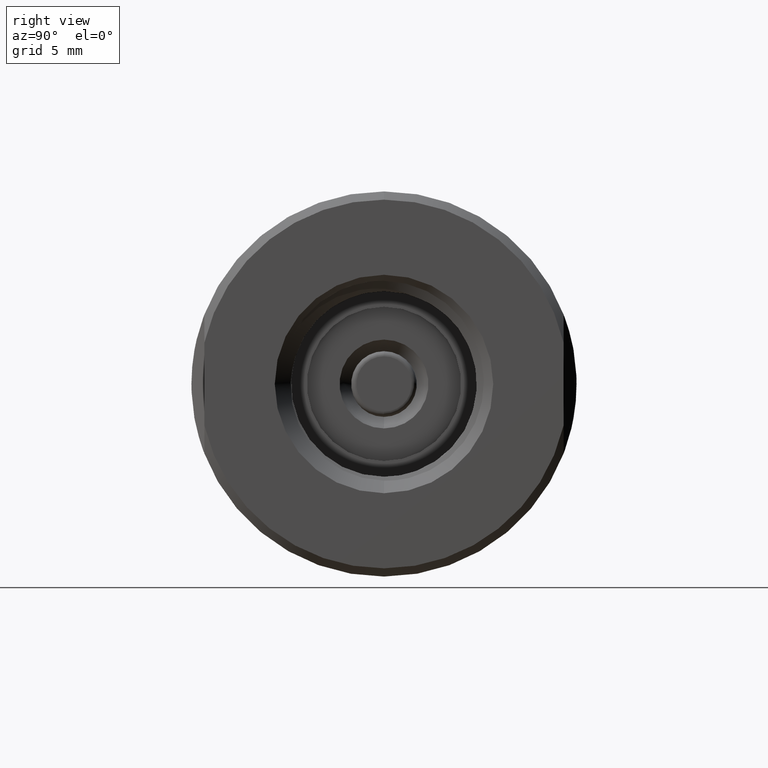
[diagram: clean part render]
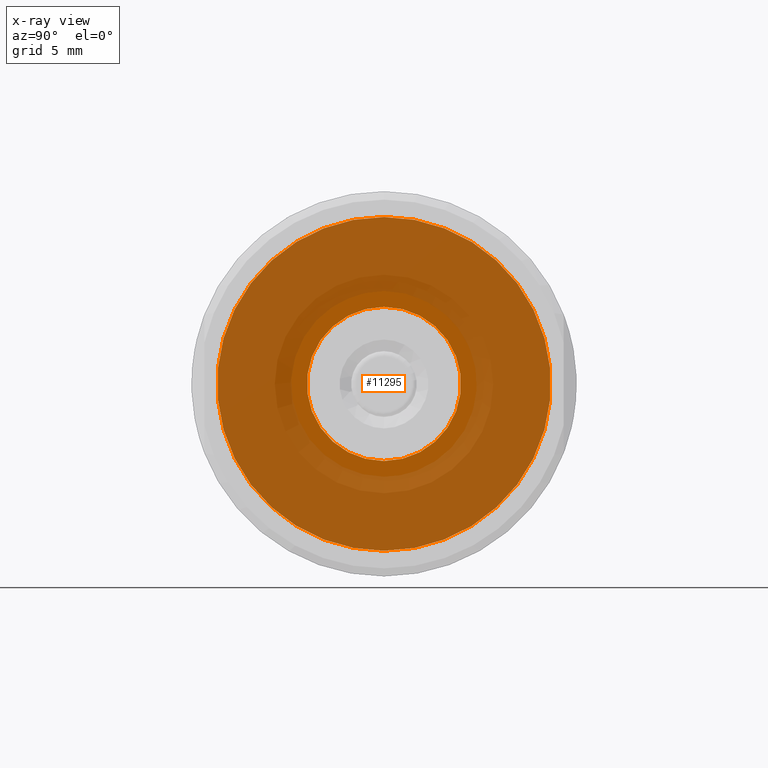
[diagram: x-ray — body ghosted, one internal face saturated and labeled with its STEP entity id]
A machine part, right view, then the same camera in x-ray: the body is ghosted and one INTERNAL B-rep face — a face not visible from any outside direction — is saturated and labeled: STEP entity #11295.
In plain terms, the highlighted planar face has unit normal (-1, 0, -0).
Its self-contained STEP definition (entity closure, byte-faithful):
#790 = CARTESIAN_POINT ( 'NONE',  ( 0.3125000000000000000, 0.0000000000000000000, 0.0000000000000000000 ) ) ;
#994 = EDGE_CURVE ( 'NONE', #3733, #3196, #10542, .T. ) ;
#1101 = CARTESIAN_POINT ( 'NONE',  ( 0.3125000000000000000, 2.296212748401288342E-17, -0.1875000000000000833 ) ) ;
#1546 = AXIS2_PLACEMENT_3D ( 'NONE', #790, #11546, #9093 ) ;
#1931 = DIRECTION ( 'NONE',  ( -1.000000000000000000, -0.0000000000000000000, -0.0000000000000000000 ) ) ;
#2107 = CIRCLE ( 'NONE', #1546, 0.4057500000000000551 ) ;
#2411 = ORIENTED_EDGE ( 'NONE', *, *, #7151, .F. ) ;
#2514 = CARTESIAN_POINT ( 'NONE',  ( 0.3125000000000000000, 0.0000000000000000000, 0.0000000000000000000 ) ) ;
#3196 = VERTEX_POINT ( 'NONE', #1101 ) ;
#3540 = EDGE_LOOP ( 'NONE', ( #7115, #7852 ) ) ;
#3554 = AXIS2_PLACEMENT_3D ( 'NONE', #2514, #6119, #11537 ) ;
#3733 = VERTEX_POINT ( 'NONE', #7637 ) ;
#3780 = CARTESIAN_POINT ( 'NONE',  ( 0.3125000000000000000, 0.0000000000000000000, 0.4057500000000000551 ) ) ;
#3870 = AXIS2_PLACEMENT_3D ( 'NONE', #8957, #6453, #8247 ) ;
#4199 = CIRCLE ( 'NONE', #8741, 0.4057500000000000551 ) ;
#4391 = AXIS2_PLACEMENT_3D ( 'NONE', #11173, #1931, #9382 ) ;
#4634 = PLANE ( 'NONE',  #3870 ) ;
#4934 = CARTESIAN_POINT ( 'NONE',  ( 0.3125000000000000000, 0.0000000000000000000, 0.0000000000000000000 ) ) ;
#5513 = FACE_OUTER_BOUND ( 'NONE', #3540, .T. ) ;
#6119 = DIRECTION ( 'NONE',  ( -1.000000000000000000, -0.0000000000000000000, -0.0000000000000000000 ) ) ;
#6227 = EDGE_CURVE ( 'NONE', #9973, #10377, #4199, .T. ) ;
#6453 = DIRECTION ( 'NONE',  ( -1.000000000000000000, 0.0000000000000000000, -0.0000000000000000000 ) ) ;
#6778 = DIRECTION ( 'NONE',  ( -1.000000000000000000, -0.0000000000000000000, -0.0000000000000000000 ) ) ;
#7115 = ORIENTED_EDGE ( 'NONE', *, *, #6227, .T. ) ;
#7151 = EDGE_CURVE ( 'NONE', #3196, #3733, #9869, .T. ) ;
#7331 = EDGE_LOOP ( 'NONE', ( #10393, #2411 ) ) ;
#7366 = EDGE_CURVE ( 'NONE', #10377, #9973, #2107, .T. ) ;
#7637 = CARTESIAN_POINT ( 'NONE',  ( 0.3125000000000000000, 0.0000000000000000000, 0.1875000000000000833 ) ) ;
#7663 = DIRECTION ( 'NONE',  ( 0.0000000000000000000, 0.0000000000000000000, 1.000000000000000000 ) ) ;
#7852 = ORIENTED_EDGE ( 'NONE', *, *, #7366, .T. ) ;
#8247 = DIRECTION ( 'NONE',  ( -0.0000000000000000000, 0.0000000000000000000, 1.000000000000000000 ) ) ;
#8741 = AXIS2_PLACEMENT_3D ( 'NONE', #4934, #6778, #7663 ) ;
#8957 = CARTESIAN_POINT ( 'NONE',  ( 0.3125000000000000000, 0.0000000000000000000, 0.0000000000000000000 ) ) ;
#9015 = FACE_BOUND ( 'NONE', #7331, .T. ) ;
#9093 = DIRECTION ( 'NONE',  ( 0.0000000000000000000, 0.0000000000000000000, 1.000000000000000000 ) ) ;
#9382 = DIRECTION ( 'NONE',  ( 0.0000000000000000000, 0.0000000000000000000, 1.000000000000000000 ) ) ;
#9869 = CIRCLE ( 'NONE', #4391, 0.1875000000000000833 ) ;
#9973 = VERTEX_POINT ( 'NONE', #3780 ) ;
#10148 = CARTESIAN_POINT ( 'NONE',  ( 0.3125000000000000000, 4.969004387540386037E-17, -0.4057500000000000551 ) ) ;
#10377 = VERTEX_POINT ( 'NONE', #10148 ) ;
#10393 = ORIENTED_EDGE ( 'NONE', *, *, #994, .F. ) ;
#10542 = CIRCLE ( 'NONE', #3554, 0.1875000000000000833 ) ;
#11173 = CARTESIAN_POINT ( 'NONE',  ( 0.3125000000000000000, 0.0000000000000000000, 0.0000000000000000000 ) ) ;
#11295 = ADVANCED_FACE ( 'NONE', ( #5513, #9015 ), #4634, .T. ) ;
#11537 = DIRECTION ( 'NONE',  ( 0.0000000000000000000, 0.0000000000000000000, 1.000000000000000000 ) ) ;
#11546 = DIRECTION ( 'NONE',  ( -1.000000000000000000, -0.0000000000000000000, -0.0000000000000000000 ) ) ;